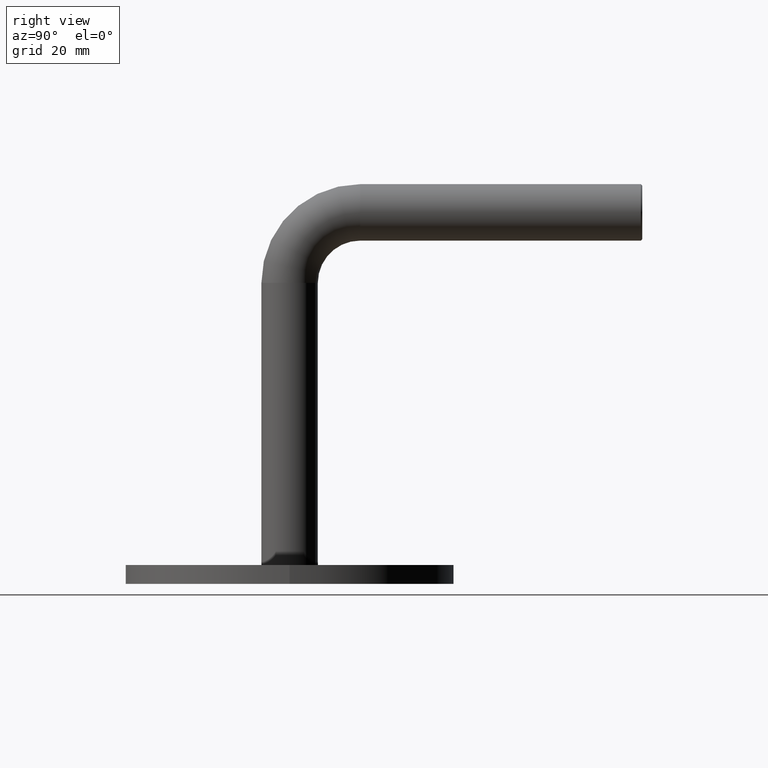
[diagram: clean part render]
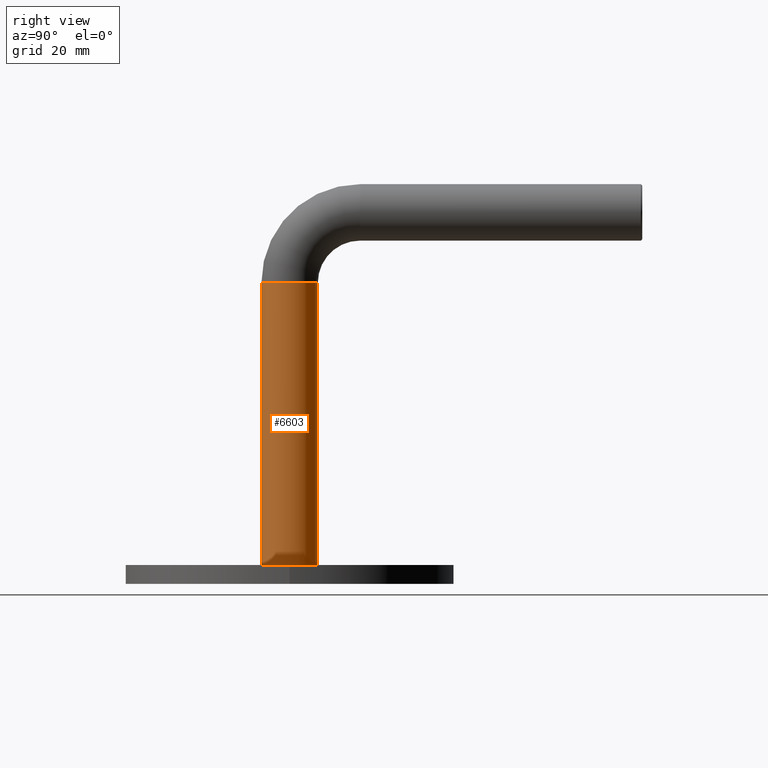
[diagram: same view with one face highlighted and labeled with its STEP entity id]
A machine part, right view. The second image highlights one B-rep face of the part: STEP entity #6603.
In plain terms, the highlighted cylindrical surface (edge-blend (fillet) strip) has radius 6 mm, axis along (0, 0, -1).
Its self-contained STEP definition (entity closure, byte-faithful):
#413 = DIRECTION ( 'NONE',  ( 1.000000000000000000, 0.000000000000000000, 0.000000000000000000 ) ) ;
#668 = CARTESIAN_POINT ( 'NONE',  ( 7.347880794884124666E-16, -6.000000000000008882, 60.00000000000000000 ) ) ;
#685 = CARTESIAN_POINT ( 'NONE',  ( 0.000000000000000000, 0.000000000000000000, 0.000000000000000000 ) ) ;
#800 = DIRECTION ( 'NONE',  ( 1.000000000000000000, 0.000000000000000000, 0.000000000000000000 ) ) ;
#1257 = LINE ( 'NONE', #6737, #4192 ) ;
#1302 = ORIENTED_EDGE ( 'NONE', *, *, #5987, .T. ) ;
#1326 = CYLINDRICAL_SURFACE ( 'NONE', #4508, 6.000000000000000888 ) ;
#1726 = EDGE_CURVE ( 'NONE', #9110, #4084, #9820, .T. ) ;
#1826 = DIRECTION ( 'NONE',  ( -0.000000000000000000, 1.156482317317871478E-16, -1.000000000000000000 ) ) ;
#1827 = VERTEX_POINT ( 'NONE', #15392 ) ;
#2700 = CIRCLE ( 'NONE', #3972, 6.000000000000000888 ) ;
#3176 = DIRECTION ( 'NONE',  ( 0.000000000000000000, 0.000000000000000000, 1.000000000000000000 ) ) ;
#3931 = ORIENTED_EDGE ( 'NONE', *, *, #16040, .T. ) ;
#3972 = AXIS2_PLACEMENT_3D ( 'NONE', #685, #3176, #800 ) ;
#4036 = VECTOR ( 'NONE', #1826, 1000.000000000000000 ) ;
#4084 = VERTEX_POINT ( 'NONE', #10694 ) ;
#4192 = VECTOR ( 'NONE', #15508, 1000.000000000000000 ) ;
#4508 = AXIS2_PLACEMENT_3D ( 'NONE', #11133, #6261, #9966 ) ;
#5450 = FACE_OUTER_BOUND ( 'NONE', #6270, .T. ) ;
#5987 = EDGE_CURVE ( 'NONE', #14033, #1827, #2700, .T. ) ;
#6020 = LINE ( 'NONE', #13220, #4036 ) ;
#6261 = DIRECTION ( 'NONE',  ( -0.000000000000000000, 1.156482317317871478E-16, -1.000000000000000000 ) ) ;
#6270 = EDGE_LOOP ( 'NONE', ( #8479, #3931, #1302, #7933 ) ) ;
#6603 = ADVANCED_FACE ( 'NONE', ( #5450 ), #1326, .T. ) ;
#6737 = CARTESIAN_POINT ( 'NONE',  ( 7.347880794884120722E-16, -6.000000000000007994, 60.00000000000000000 ) ) ;
#7933 = ORIENTED_EDGE ( 'NONE', *, *, #13970, .F. ) ;
#8479 = ORIENTED_EDGE ( 'NONE', *, *, #1726, .F. ) ;
#9110 = VERTEX_POINT ( 'NONE', #668 ) ;
#9820 = CIRCLE ( 'NONE', #16052, 6.000000000000000888 ) ;
#9966 = DIRECTION ( 'NONE',  ( 0.000000000000000000, 1.000000000000000000, 0.000000000000000000 ) ) ;
#10694 = CARTESIAN_POINT ( 'NONE',  ( 0.000000000000000000, 5.999999999999993783, 60.00000000000000000 ) ) ;
#11133 = CARTESIAN_POINT ( 'NONE',  ( 0.000000000000000000, -6.938893903907228378E-15, 60.00000000000000000 ) ) ;
#11636 = CARTESIAN_POINT ( 'NONE',  ( 0.000000000000000000, -6.938893903907228378E-15, 60.00000000000000000 ) ) ;
#11682 = DIRECTION ( 'NONE',  ( 0.000000000000000000, 0.000000000000000000, 1.000000000000000000 ) ) ;
#13220 = CARTESIAN_POINT ( 'NONE',  ( 0.000000000000000000, 5.999999999999993783, 60.00000000000000000 ) ) ;
#13970 = EDGE_CURVE ( 'NONE', #4084, #1827, #6020, .T. ) ;
#14033 = VERTEX_POINT ( 'NONE', #15543 ) ;
#15392 = CARTESIAN_POINT ( 'NONE',  ( 0.000000000000000000, 6.000000000000001776, 0.000000000000000000 ) ) ;
#15508 = DIRECTION ( 'NONE',  ( -0.000000000000000000, 1.156482317317871478E-16, -1.000000000000000000 ) ) ;
#15543 = CARTESIAN_POINT ( 'NONE',  ( 7.347880794884120722E-16, -6.000000000000000888, 0.000000000000000000 ) ) ;
#16040 = EDGE_CURVE ( 'NONE', #9110, #14033, #1257, .T. ) ;
#16052 = AXIS2_PLACEMENT_3D ( 'NONE', #11636, #11682, #413 ) ;